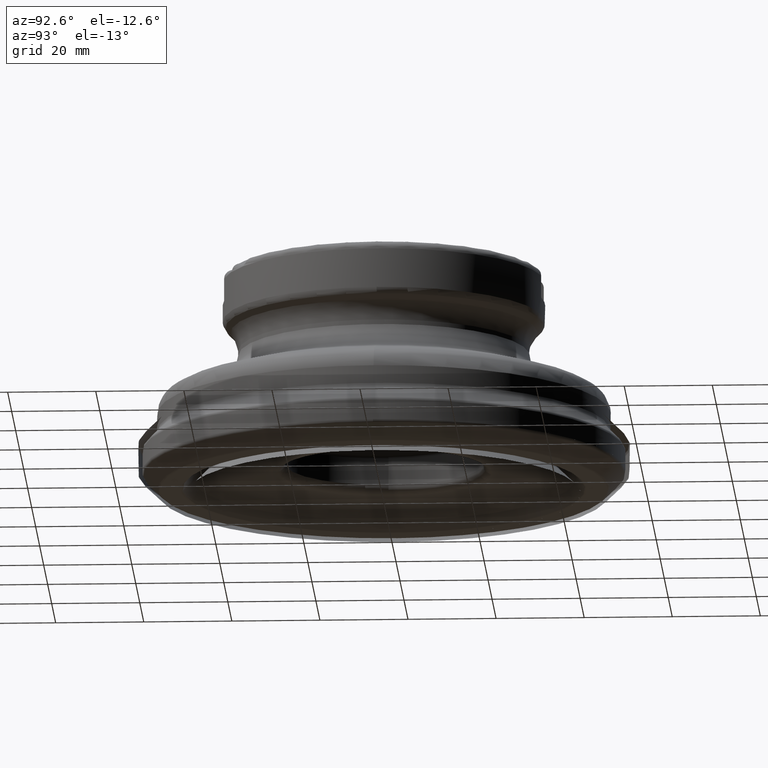
[diagram: clean part render]
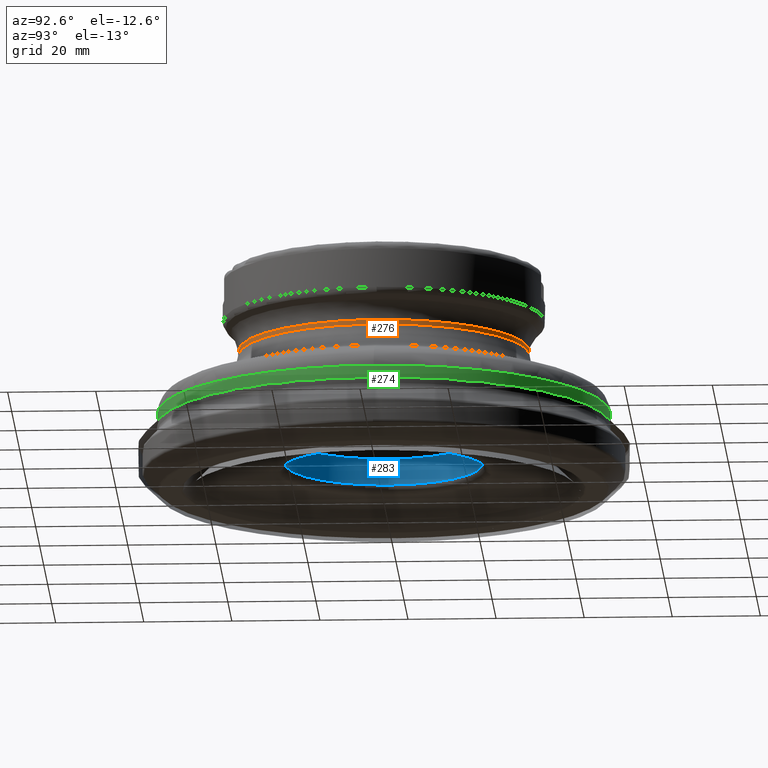
[diagram: same view with three faces highlighted in distinct colors, each labeled with its STEP entity id]
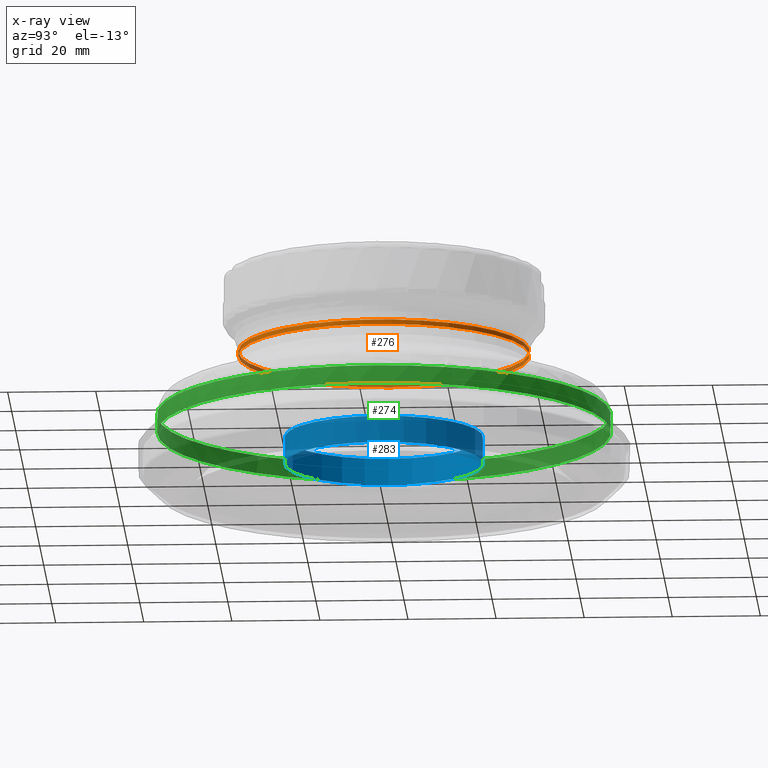
[diagram: x-ray of the same camera — body ghosted, the three highlighted faces saturated]
A machine part, auxiliary view with three faces highlighted in distinct colors.
The next image is the same camera in x-ray (body ghosted, the three faces saturated) — at least one of them is partly hidden behind the body in this view.
Their STEP definitions:

[orange] entity #276 — the highlighted cylindrical surface (bore or boss wall) has radius 33.076 mm, axis along (0, 0, 1).
#194=CYLINDRICAL_SURFACE('',#1065,33.0760000000001);
#276=ADVANCED_FACE('',(#364,#365),#194,.T.);
#364=FACE_BOUND('',#468,.T.);
#365=FACE_BOUND('',#469,.T.);
#468=EDGE_LOOP('',(#607));
#469=EDGE_LOOP('',(#608));
#607=ORIENTED_EDGE('',*,*,#872,.T.);
#608=ORIENTED_EDGE('',*,*,#873,.T.);
#787=VERTEX_POINT('',#1820);
#788=VERTEX_POINT('',#1822);
#872=EDGE_CURVE('',#787,#787,#949,.T.);
#873=EDGE_CURVE('',#788,#788,#950,.T.);
#949=CIRCLE('',#1063,33.0760000000001);
#950=CIRCLE('',#1064,33.0760000000001);
#1063=AXIS2_PLACEMENT_3D('',#1819,#1211,#1212);
#1064=AXIS2_PLACEMENT_3D('',#1821,#1213,#1214);
#1065=AXIS2_PLACEMENT_3D('',#1823,#1215,#1216);
#1211=DIRECTION('',(1.17145536458253E-15,1.33226762955019E-15,1.));
#1212=DIRECTION('',(-1.,3.1641356201817E-15,1.25871820726337E-15));
#1213=DIRECTION('',(-1.17145536458253E-15,-1.33226762955019E-15,-1.));
#1214=DIRECTION('',(-1.,3.1641356201817E-15,1.25871820726337E-15));
#1215=DIRECTION('',(1.17145536458253E-15,1.33226762955019E-15,1.));
#1216=DIRECTION('',(-1.,3.1641356201817E-15,1.25871820726337E-15));
#1819=CARTESIAN_POINT('',(3.74511621498313E-14,4.25922937653169E-14,31.969773055056));
#1820=CARTESIAN_POINT('',(-33.076,1.47249243538447E-13,31.969773055056));
#1821=CARTESIAN_POINT('',(3.86752692443309E-14,4.39844409238096E-14,33.0147186257614));
#1822=CARTESIAN_POINT('',(-33.076,1.4864139069694E-13,33.0147186257614));
#1823=CARTESIAN_POINT('',(5.95099325207924E-14,6.76791955811495E-14,50.8));

[blue] entity #283 — the highlighted cylindrical surface (bore or boss wall) has radius 22.5 mm, axis along (-0, -0, -1).
#195=CYLINDRICAL_SURFACE('',#1076,22.5);
#283=ADVANCED_FACE('',(#378,#379),#195,.F.);
#378=FACE_BOUND('',#482,.T.);
#379=FACE_BOUND('',#483,.T.);
#482=EDGE_LOOP('',(#621));
#483=EDGE_LOOP('',(#622));
#621=ORIENTED_EDGE('',*,*,#876,.T.);
#622=ORIENTED_EDGE('',*,*,#877,.T.);
#791=VERTEX_POINT('',#1835);
#792=VERTEX_POINT('',#1837);
#876=EDGE_CURVE('',#791,#791,#953,.T.);
#877=EDGE_CURVE('',#792,#792,#954,.T.);
#953=CIRCLE('',#1074,22.5);
#954=CIRCLE('',#1075,22.5);
#1074=AXIS2_PLACEMENT_3D('',#1834,#1233,#1234);
#1075=AXIS2_PLACEMENT_3D('',#1836,#1235,#1236);
#1076=AXIS2_PLACEMENT_3D('',#1838,#1237,#1238);
#1233=DIRECTION('',(-1.17145536458253E-15,-1.33226762955019E-15,-1.));
#1234=DIRECTION('',(-1.,3.1641356201817E-15,1.15648231731787E-15));
#1235=DIRECTION('',(1.17145536458253E-15,1.33226762955019E-15,1.));
#1236=DIRECTION('',(-1.,3.1641356201817E-15,1.15648231731787E-15));
#1237=DIRECTION('',(-1.17145536458253E-15,-1.33226762955019E-15,-1.));
#1238=DIRECTION('',(1.,-3.1641356201817E-15,-1.2335811384724E-15));
#1834=CARTESIAN_POINT('',(8.11661586777365E-15,9.23082936752084E-15,6.92865994998125));
#1835=CARTESIAN_POINT('',(-22.5,8.0423880821609E-14,6.92865994998128));
#1836=CARTESIAN_POINT('',(1.52242339181145E-14,1.73141501136343E-14,12.996));
#1837=CARTESIAN_POINT('',(-22.5,8.85072015677224E-14,12.996));
#1838=CARTESIAN_POINT('',(5.9744223593709E-14,6.79456491070596E-14,51.));

[green] entity #274 — the highlighted cylindrical surface (bore or boss wall) has radius 51.4895 mm, axis along (0, 0, 1).
#193=CYLINDRICAL_SURFACE('',#1059,51.4894978657299);
#274=ADVANCED_FACE('',(#360,#361),#193,.T.);
#360=FACE_BOUND('',#464,.T.);
#361=FACE_BOUND('',#465,.T.);
#464=EDGE_LOOP('',(#603));
#465=EDGE_LOOP('',(#604));
#603=ORIENTED_EDGE('',*,*,#868,.T.);
#604=ORIENTED_EDGE('',*,*,#869,.T.);
#783=VERTEX_POINT('',#1810);
#784=VERTEX_POINT('',#1812);
#868=EDGE_CURVE('',#783,#783,#945,.T.);
#869=EDGE_CURVE('',#784,#784,#946,.T.);
#945=CIRCLE('',#1057,51.4894978657299);
#946=CIRCLE('',#1058,51.4894978657299);
#1057=AXIS2_PLACEMENT_3D('',#1809,#1199,#1200);
#1058=AXIS2_PLACEMENT_3D('',#1811,#1201,#1202);
#1059=AXIS2_PLACEMENT_3D('',#1813,#1203,#1204);
#1199=DIRECTION('',(1.17145536458253E-15,1.33226762955019E-15,1.));
#1200=DIRECTION('',(-1.,3.1641356201817E-15,1.17917874859679E-15));
#1201=DIRECTION('',(-1.17145536458253E-15,-1.33226762955019E-15,-1.));
#1202=DIRECTION('',(1.,-3.1641356201817E-15,-1.14548792720831E-15));
#1203=DIRECTION('',(1.17145536458253E-15,1.33226762955019E-15,1.));
#1204=DIRECTION('',(-1.,3.1641356201817E-15,1.21286956998527E-15));
#1809=CARTESIAN_POINT('',(1.66287601393719E-14,1.89114835469081E-14,14.1949583758131));
#1810=CARTESIAN_POINT('',(-51.4894978657299,1.81831237809133E-13,14.1949583758132));
#1811=CARTESIAN_POINT('',(2.14085683343057E-14,2.43474428895318E-14,18.2751891207866));
#1812=CARTESIAN_POINT('',(51.4894978657299,-1.38572311372694E-13,18.2751891207866));
#1813=CARTESIAN_POINT('',(5.95099325207924E-14,6.76791955811495E-14,50.8));